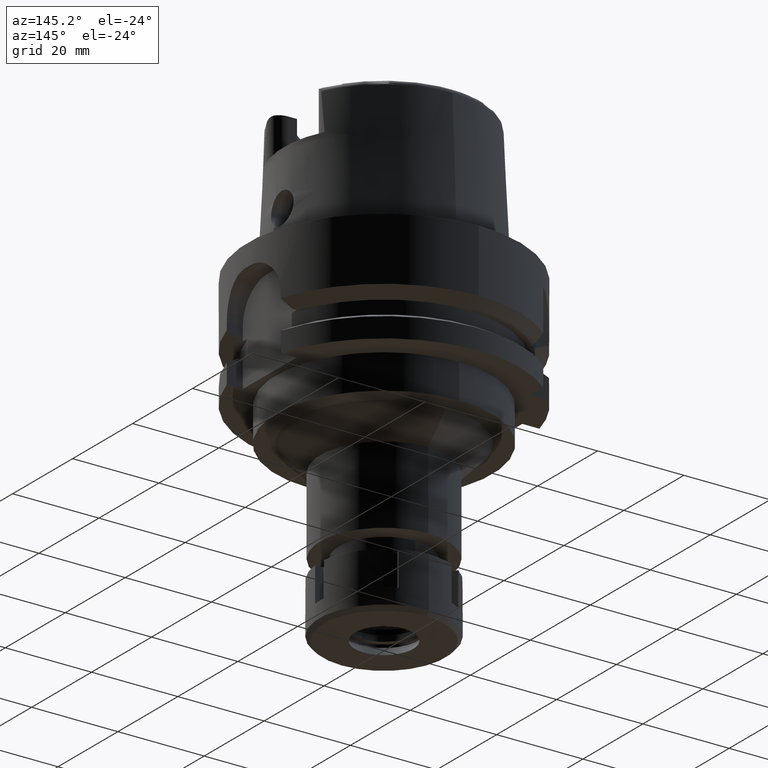
[diagram: clean part render]
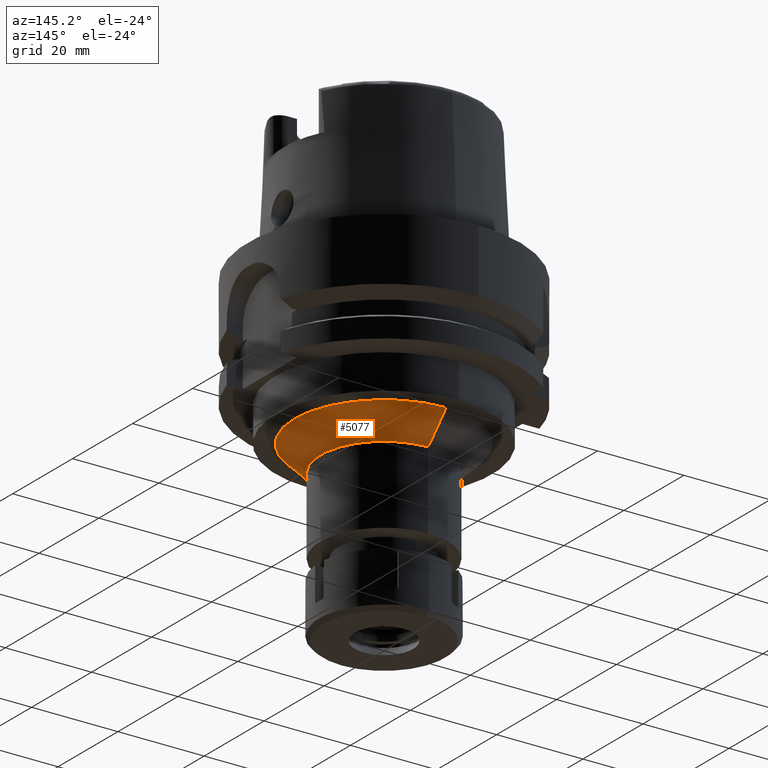
[diagram: same view with one face highlighted and labeled with its STEP entity id]
A machine part, auxiliary view. The second image highlights one B-rep face of the part: STEP entity #5077.
In plain terms, the highlighted conical surface has half-angle 45 deg.
Its self-contained STEP definition (entity closure, byte-faithful):
#145 = VERTEX_POINT ( 'NONE', #2134 ) ;
#396 = DIRECTION ( 'NONE',  ( 0.0000000000000000000, -0.7071067811865474617, -0.7071067811865474617 ) ) ;
#554 = EDGE_CURVE ( 'NONE', #145, #3172, #698, .T. ) ;
#573 = CIRCLE ( 'NONE', #1380, 14.75000000000000000 ) ;
#639 = LINE ( 'NONE', #3555, #6202 ) ;
#668 = DIRECTION ( 'NONE',  ( 0.0000000000000000000, 0.7071067811865474617, -0.7071067811865474617 ) ) ;
#698 = CIRCLE ( 'NONE', #999, 20.75000000000000000 ) ;
#840 = DIRECTION ( 'NONE',  ( 0.0000000000000000000, 1.000000000000000000, 0.0000000000000000000 ) ) ;
#926 = DIRECTION ( 'NONE',  ( 0.0000000000000000000, 0.0000000000000000000, -1.000000000000000000 ) ) ;
#999 = AXIS2_PLACEMENT_3D ( 'NONE', #2764, #1819, #840 ) ;
#1093 = CARTESIAN_POINT ( 'NONE',  ( 0.0000000000000000000, -20.75000000000000000, -34.00000000000000000 ) ) ;
#1173 = DIRECTION ( 'NONE',  ( 0.0000000000000000000, 0.0000000000000000000, 1.000000000000000000 ) ) ;
#1380 = AXIS2_PLACEMENT_3D ( 'NONE', #6144, #926, #4196 ) ;
#1819 = DIRECTION ( 'NONE',  ( 0.0000000000000000000, 0.0000000000000000000, -1.000000000000000000 ) ) ;
#2134 = CARTESIAN_POINT ( 'NONE',  ( 0.0000000000000000000, 20.75000000000000000, -34.00000000000000000 ) ) ;
#2376 = AXIS2_PLACEMENT_3D ( 'NONE', #4945, #1173, #2637 ) ;
#2571 = ORIENTED_EDGE ( 'NONE', *, *, #5935, .F. ) ;
#2637 = DIRECTION ( 'NONE',  ( 0.0000000000000000000, 1.000000000000000000, 0.0000000000000000000 ) ) ;
#2764 = CARTESIAN_POINT ( 'NONE',  ( 0.0000000000000000000, 0.0000000000000000000, -34.00000000000000000 ) ) ;
#3053 = ORIENTED_EDGE ( 'NONE', *, *, #4067, .F. ) ;
#3124 = VERTEX_POINT ( 'NONE', #4428 ) ;
#3172 = VERTEX_POINT ( 'NONE', #1093 ) ;
#3555 = CARTESIAN_POINT ( 'NONE',  ( 0.0000000000000000000, -20.75000000000000000, -34.00000000000000000 ) ) ;
#4036 = ORIENTED_EDGE ( 'NONE', *, *, #4973, .T. ) ;
#4067 = EDGE_CURVE ( 'NONE', #145, #4211, #5274, .T. ) ;
#4196 = DIRECTION ( 'NONE',  ( 0.0000000000000000000, 1.000000000000000000, 0.0000000000000000000 ) ) ;
#4211 = VERTEX_POINT ( 'NONE', #5339 ) ;
#4428 = CARTESIAN_POINT ( 'NONE',  ( 0.0000000000000000000, -14.75000000000000000, -40.00000000000000000 ) ) ;
#4654 = EDGE_LOOP ( 'NONE', ( #5668, #4036, #2571, #3053 ) ) ;
#4707 = CONICAL_SURFACE ( 'NONE', #2376, 17.75000000000000000, 0.7853981633972997312 ) ;
#4736 = CARTESIAN_POINT ( 'NONE',  ( 0.0000000000000000000, 20.75000000000000000, -34.00000000000000000 ) ) ;
#4891 = VECTOR ( 'NONE', #396, 1000.000000000000114 ) ;
#4945 = CARTESIAN_POINT ( 'NONE',  ( 0.0000000000000000000, 0.0000000000000000000, -37.00000000000000000 ) ) ;
#4973 = EDGE_CURVE ( 'NONE', #3172, #3124, #639, .T. ) ;
#5077 = ADVANCED_FACE ( 'NONE', ( #5512 ), #4707, .T. ) ;
#5274 = LINE ( 'NONE', #4736, #4891 ) ;
#5339 = CARTESIAN_POINT ( 'NONE',  ( 0.0000000000000000000, 14.75000000000000000, -40.00000000000000000 ) ) ;
#5512 = FACE_OUTER_BOUND ( 'NONE', #4654, .T. ) ;
#5668 = ORIENTED_EDGE ( 'NONE', *, *, #554, .T. ) ;
#5935 = EDGE_CURVE ( 'NONE', #4211, #3124, #573, .T. ) ;
#6144 = CARTESIAN_POINT ( 'NONE',  ( 0.0000000000000000000, 0.0000000000000000000, -40.00000000000000000 ) ) ;
#6202 = VECTOR ( 'NONE', #668, 1000.000000000000114 ) ;